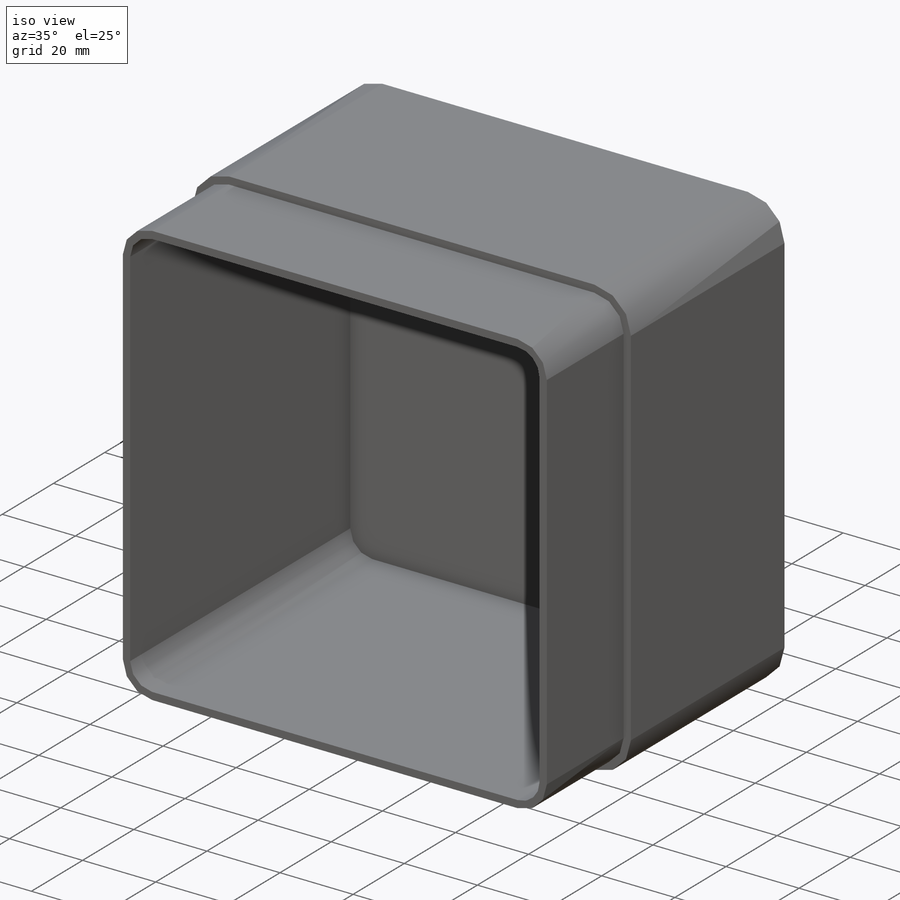
[diagram: iso view]
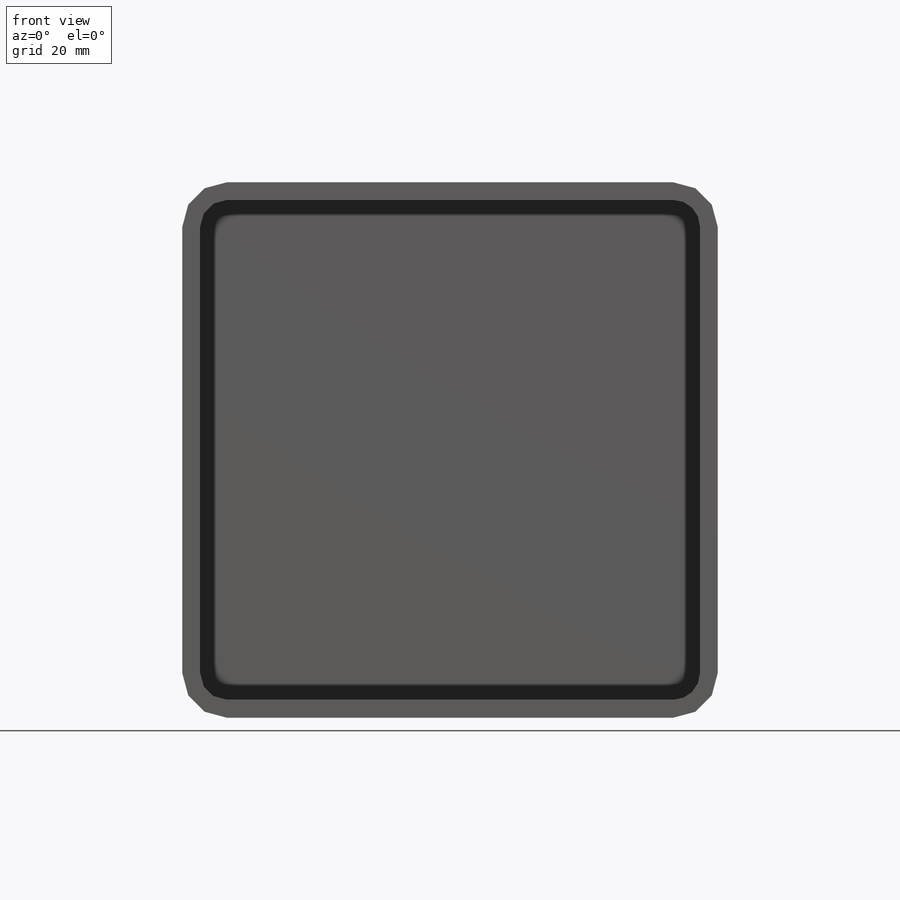
[diagram: front view]
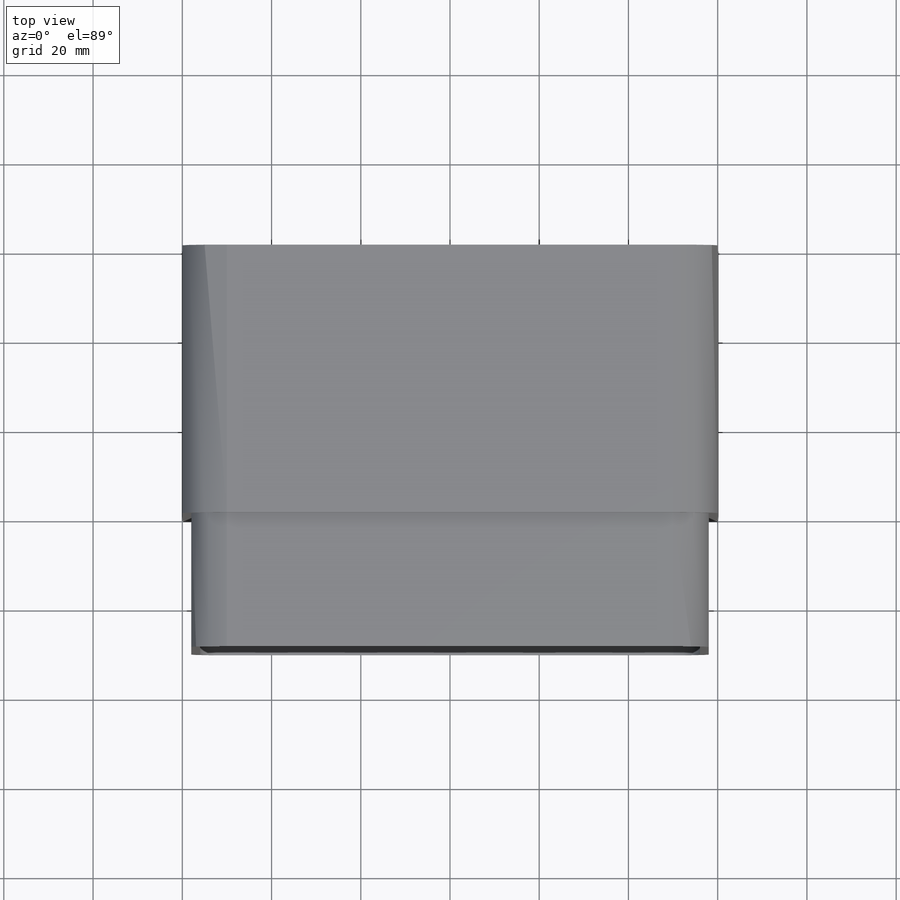
[diagram: top view]
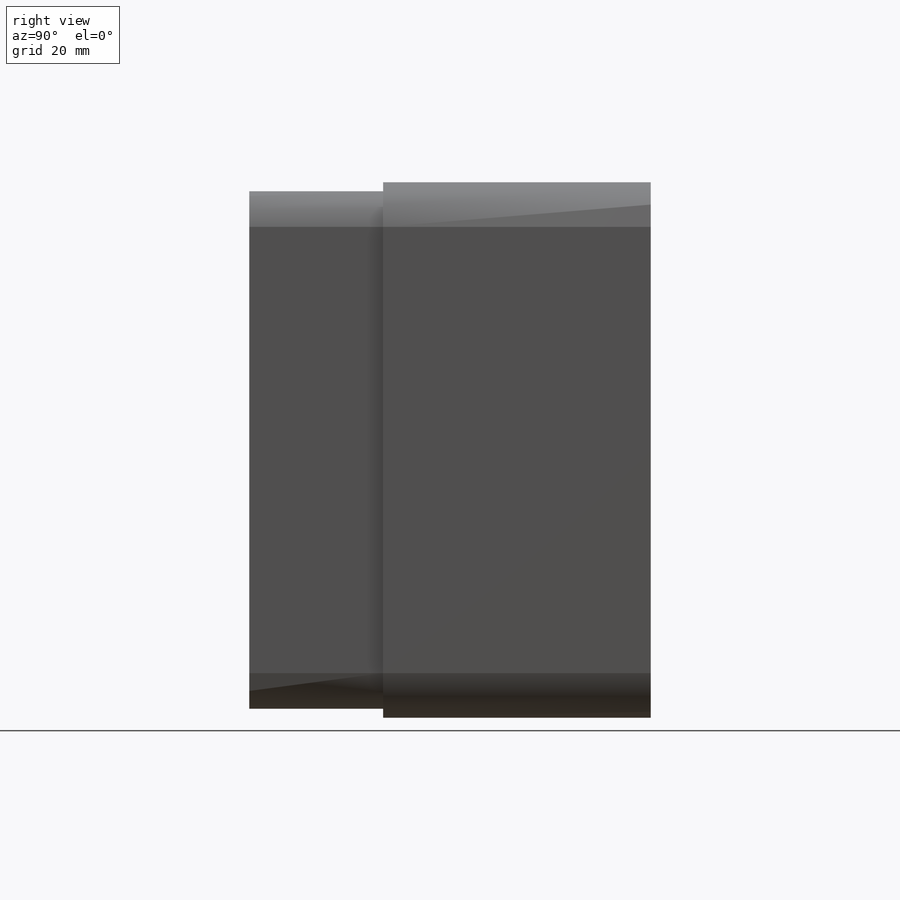
[diagram: right view]
SOLIDWORKS PART (.sldprt)
format: sldprt  version: not decoded by parser v0  size: 202,240 bytes
history: native  units: mm
features: fillet x4, plane x3, sketch x2, material x1, extrude x1, shell x1, cut_extrude x1 (+10 scaffold rows collapsed)
feature tree (23):
  scaffold x10  (default folders/planes/origin — collapsed)
  material  "Materiál <není určen>"
  plane  "Přední rovina"
  plane  "Horní rovina"
  plane  "Pravá rovina"
  sketch  "Skica1"  dims[D1=120.0mm D2=120.0mm]
  extrude  "Vysunout1"  Depth=90mm
  fillet  "Zaoblit1"  Radius=10mm
  fillet  "Zaoblit2"  Radius=10mm
  fillet  "Zaoblit3"  Radius=10mm
  fillet  "Zaoblit4"  Radius=10mm
  shell  "Skořepina4"  Thickness=4mm
  sketch  "Skica2"  dims[D1=2.0mm]
  cut_extrude  "Odebrat vysunutím1"  Depth=30mm
decode coverage: 9 of 9 modeling features carry decoded parameters
note: suppression state not decoded; provenance and decode notes live in map.json
